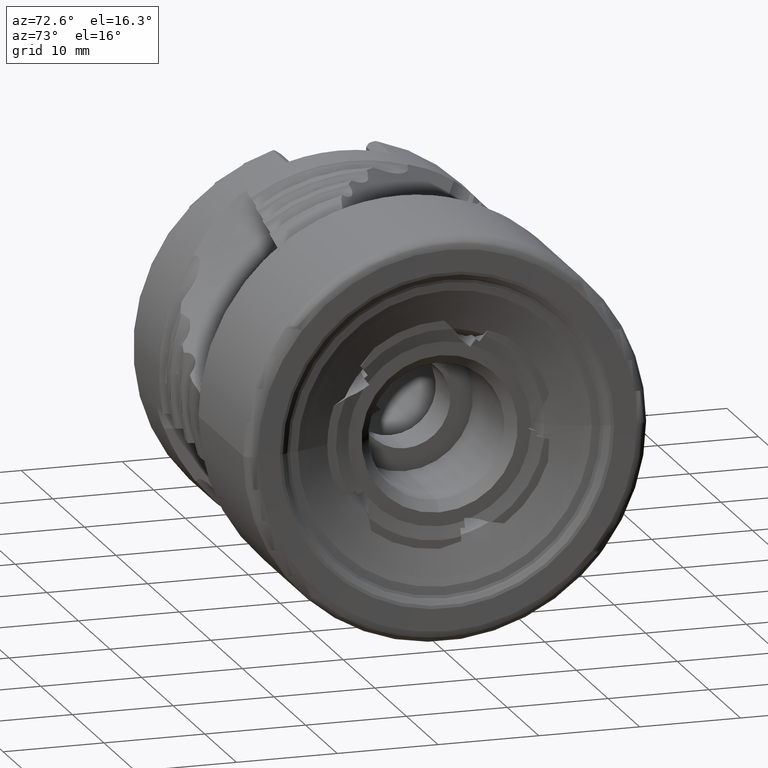
[diagram: clean part render]
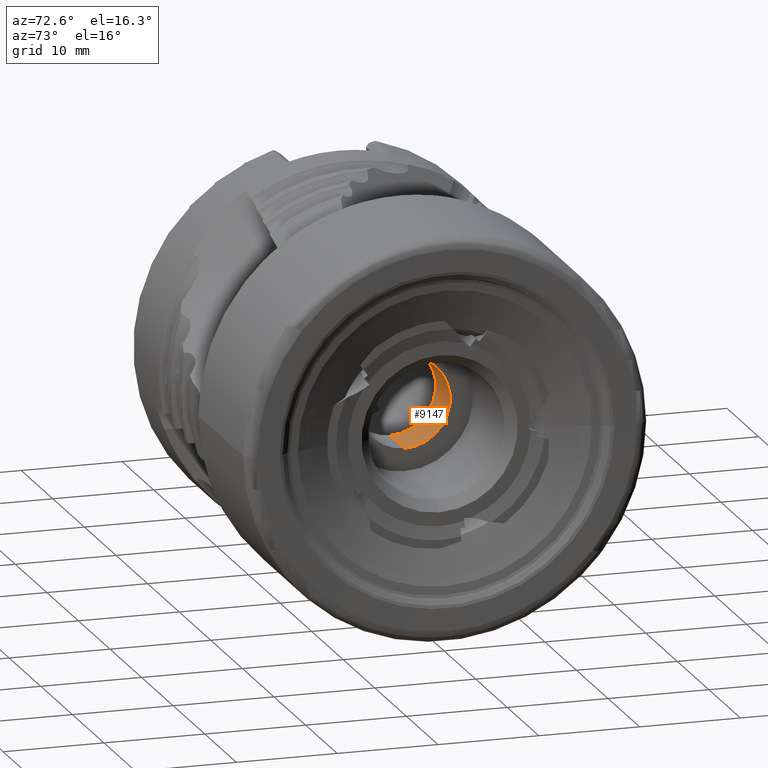
[diagram: same view with one face highlighted and labeled with its STEP entity id]
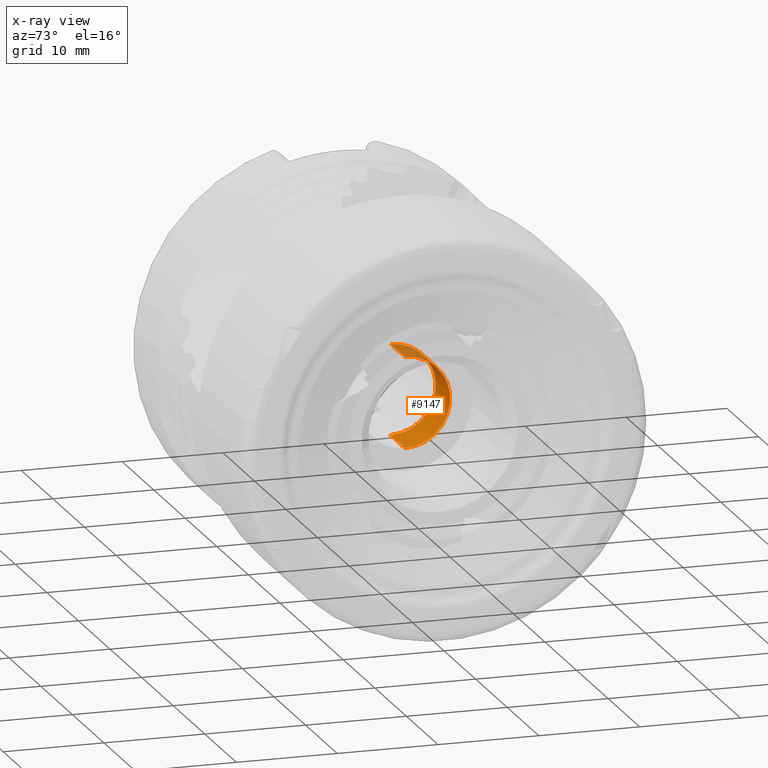
[diagram: x-ray of the same camera — body ghosted, the highlighted face saturated]
A machine part, auxiliary view. The second image highlights one B-rep face of the part: STEP entity #9147.
The next image is the same camera in x-ray: the body ghosted, the highlighted face saturated — about 14% of this face is hidden behind the body in this view.
In plain terms, the highlighted cylindrical surface (partial cylindrical patch) has radius 4.5 mm, axis along (1, -0, -0).
Its self-contained STEP definition (entity closure, byte-faithful):
#423 = CARTESIAN_POINT ( 'NONE',  ( -16.99999999999999289, 0.0000000000000000000, -4.499999999999998224 ) ) ;
#1084 = CARTESIAN_POINT ( 'NONE',  ( -12.40000000000000036, 0.0000000000000000000, 0.0000000000000000000 ) ) ;
#1271 = CARTESIAN_POINT ( 'NONE',  ( -12.40000000000000036, 0.0000000000000000000, -4.499999999999999112 ) ) ;
#1800 = CARTESIAN_POINT ( 'NONE',  ( 0.0000000000000000000, 0.0000000000000000000, -4.499999999999999112 ) ) ;
#2546 = DIRECTION ( 'NONE',  ( 0.0000000000000000000, 0.0000000000000000000, -1.000000000000000000 ) ) ;
#3520 = VECTOR ( 'NONE', #9494, 1000.000000000000000 ) ;
#3925 = CIRCLE ( 'NONE', #9232, 4.499999999999999112 ) ;
#4204 = CARTESIAN_POINT ( 'NONE',  ( -16.99999999999999289, 0.0000000000000000000, 0.0000000000000000000 ) ) ;
#4779 = EDGE_CURVE ( 'NONE', #11460, #5828, #6173, .T. ) ;
#5828 = VERTEX_POINT ( 'NONE', #13295 ) ;
#5888 = CARTESIAN_POINT ( 'NONE',  ( 0.0000000000000000000, 5.510910596163087583E-16, 4.499999999999999112 ) ) ;
#6173 = CIRCLE ( 'NONE', #9160, 4.499999999999998224 ) ;
#6465 = AXIS2_PLACEMENT_3D ( 'NONE', #14474, #9804, #2546 ) ;
#6616 = DIRECTION ( 'NONE',  ( 0.0000000000000000000, 0.0000000000000000000, -1.000000000000000000 ) ) ;
#7143 = DIRECTION ( 'NONE',  ( 1.000000000000000000, -0.0000000000000000000, -0.0000000000000000000 ) ) ;
#7249 = LINE ( 'NONE', #5888, #3520 ) ;
#8772 = VERTEX_POINT ( 'NONE', #1271 ) ;
#9147 = ADVANCED_FACE ( 'NONE', ( #9775 ), #11452, .F. ) ;
#9160 = AXIS2_PLACEMENT_3D ( 'NONE', #4204, #12566, #6616 ) ;
#9232 = AXIS2_PLACEMENT_3D ( 'NONE', #1084, #7143, #14273 ) ;
#9494 = DIRECTION ( 'NONE',  ( 1.000000000000000000, -0.0000000000000000000, -0.0000000000000000000 ) ) ;
#9775 = FACE_OUTER_BOUND ( 'NONE', #11480, .T. ) ;
#9804 = DIRECTION ( 'NONE',  ( 1.000000000000000000, -0.0000000000000000000, -0.0000000000000000000 ) ) ;
#10167 = VERTEX_POINT ( 'NONE', #12964 ) ;
#10673 = ORIENTED_EDGE ( 'NONE', *, *, #14751, .T. ) ;
#11452 = CYLINDRICAL_SURFACE ( 'NONE', #6465, 4.499999999999999112 ) ;
#11460 = VERTEX_POINT ( 'NONE', #423 ) ;
#11480 = EDGE_LOOP ( 'NONE', ( #14232, #15087, #14578, #10673 ) ) ;
#12114 = EDGE_CURVE ( 'NONE', #5828, #10167, #7249, .T. ) ;
#12488 = DIRECTION ( 'NONE',  ( 1.000000000000000000, -0.0000000000000000000, -0.0000000000000000000 ) ) ;
#12566 = DIRECTION ( 'NONE',  ( 1.000000000000000000, -0.0000000000000000000, -0.0000000000000000000 ) ) ;
#12891 = EDGE_CURVE ( 'NONE', #11460, #8772, #13732, .T. ) ;
#12964 = CARTESIAN_POINT ( 'NONE',  ( -12.40000000000000036, 5.510910596163087583E-16, 4.499999999999999112 ) ) ;
#13295 = CARTESIAN_POINT ( 'NONE',  ( -16.99999999999999289, 5.510910596163086597E-16, 4.499999999999998224 ) ) ;
#13732 = LINE ( 'NONE', #1800, #14291 ) ;
#14232 = ORIENTED_EDGE ( 'NONE', *, *, #12114, .F. ) ;
#14273 = DIRECTION ( 'NONE',  ( 0.0000000000000000000, 0.0000000000000000000, -1.000000000000000000 ) ) ;
#14291 = VECTOR ( 'NONE', #12488, 1000.000000000000000 ) ;
#14474 = CARTESIAN_POINT ( 'NONE',  ( 0.0000000000000000000, 0.0000000000000000000, 0.0000000000000000000 ) ) ;
#14578 = ORIENTED_EDGE ( 'NONE', *, *, #12891, .T. ) ;
#14751 = EDGE_CURVE ( 'Kante55', #8772, #10167, #3925, .T. ) ;
#15087 = ORIENTED_EDGE ( 'NONE', *, *, #4779, .F. ) ;